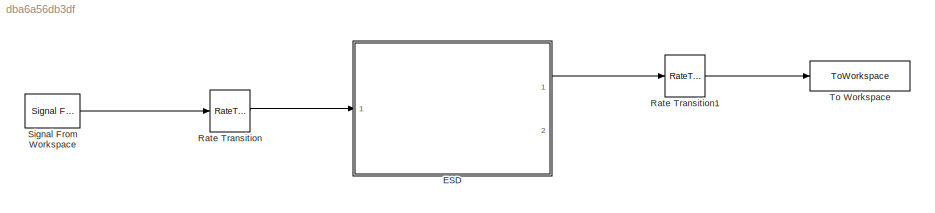
MODEL slx_dba6a56db3df
KIND model
CONFIG AbsTol = auto
CONFIG EnableMultiTasking = off
CONFIG FixedStep = auto
CONFIG InitFcn = simulinkInitESD
CONFIG MaxStep = auto
CONFIG MinStep = auto
CONFIG PostLoadFcn = addpath([fileparts(which(bdroot)) filesep '..' filesep])\nloadDataSimulinkCallback
CONFIG RelTol = 1e-3
CONFIG SampleTimeConstraint = Unconstrained
CONFIG SolverName = FixedStepDiscrete
CONFIG StartTime = 0.0
CONFIG StopFcn = simulinkVerifyESD
CONFIG StopTime = stopTime
BLOCK [SubSystem] ESD
  Ports = [1, 2]
  ReferencedSubsystem = ESD
  RequestExecContextInheritance = off
BLOCK [RateTransition] Rate Transition
  Deterministic = off
  OutPortSampleTime = params.systemClockPeriod
BLOCK [RateTransition] Rate Transition1
  OutPortSampleTime = params.samplingPeriod
BLOCK [Reference] Signal From Workspace  REF=dspsrcs4/Signal From
Workspace
  Ports = [0, 1]
  SourceBlock = dspsrcs4/Signal From\nWorkspace
  SourceProductBaseCode = DS
  SourceType = Signal From Workspace
BLOCK [ToWorkspace] To Workspace
  FixptAsFi = on
  MaxDataPoints = inf
  Ports = [1]
  SampleTime = -1
  Save2DSignal = 2-D array (concatenate along first dimension)
  VariableName = outputData
LINE ESD:1 -> Rate Transition1:1
LINE Rate Transition1:1 -> To Workspace:1
LINE Rate Transition:1 -> ESD:1
LINE Signal From Workspace:1 -> Rate Transition:1
